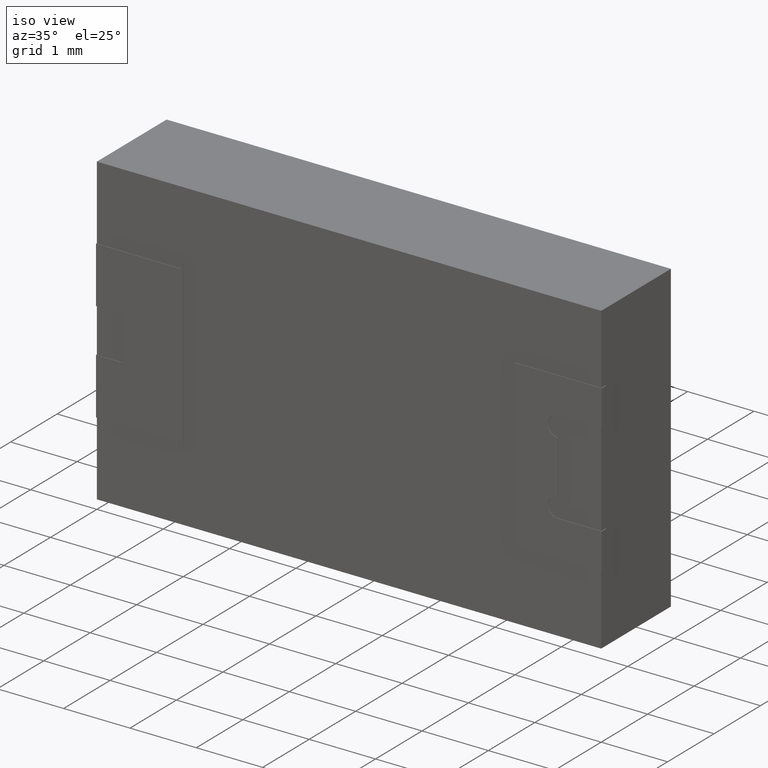
[diagram: clean part render]
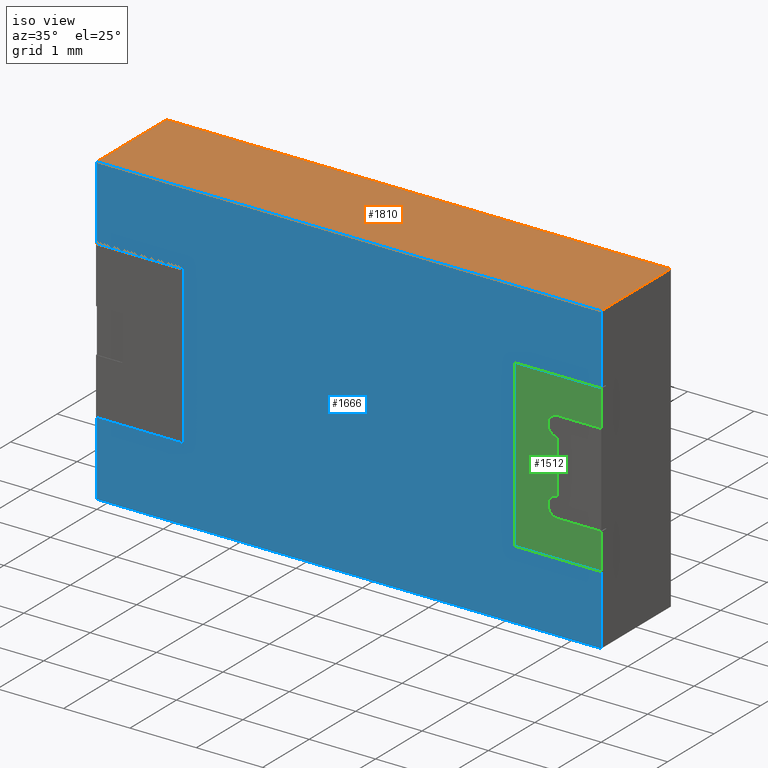
[diagram: same view with three faces highlighted in distinct colors, each labeled with its STEP entity id]
A machine part, iso view with three faces highlighted in distinct colors.
Their STEP definitions:

[orange] entity #1810 — the highlighted planar face has unit normal (0, 0, -1).
#54 = VERTEX_POINT ( 'NONE', #2719 ) ;
#75 = LINE ( 'NONE', #298, #412 ) ;
#108 = EDGE_LOOP ( 'NONE', ( #844, #1357, #180, #644 ) ) ;
#180 = ORIENTED_EDGE ( 'NONE', *, *, #2215, .F. ) ;
#224 = LINE ( 'NONE', #507, #744 ) ;
#227 = DIRECTION ( 'NONE',  ( 1.000000000000000000, 0.000000000000000000, 0.000000000000000000 ) ) ;
#261 = CARTESIAN_POINT ( 'NONE',  ( 0.000000000000000000, 0.000000000000000000, 0.000000000000000000 ) ) ;
#288 = CARTESIAN_POINT ( 'NONE',  ( 0.000000000000000000, 1.500000000000000000, 0.000000000000000000 ) ) ;
#298 = CARTESIAN_POINT ( 'NONE',  ( 0.000000000000000000, 0.000000000000000000, 0.000000000000000000 ) ) ;
#328 = AXIS2_PLACEMENT_3D ( 'NONE', #2564, #1183, #510 ) ;
#412 = VECTOR ( 'NONE', #2303, 1000.000000000000000 ) ;
#507 = CARTESIAN_POINT ( 'NONE',  ( 7.600000000000000533, 1.500000000000000000, 0.000000000000000000 ) ) ;
#510 = DIRECTION ( 'NONE',  ( -1.000000000000000000, 0.000000000000000000, -0.000000000000000000 ) ) ;
#580 = CARTESIAN_POINT ( 'NONE',  ( 7.600000000000000533, 1.500000000000000000, 0.000000000000000000 ) ) ;
#644 = ORIENTED_EDGE ( 'NONE', *, *, #2559, .T. ) ;
#744 = VECTOR ( 'NONE', #1379, 1000.000000000000000 ) ;
#844 = ORIENTED_EDGE ( 'NONE', *, *, #2618, .T. ) ;
#922 = PLANE ( 'NONE',  #328 ) ;
#939 = LINE ( 'NONE', #2331, #1895 ) ;
#961 = LINE ( 'NONE', #288, #2799 ) ;
#1102 = VERTEX_POINT ( 'NONE', #1147 ) ;
#1147 = CARTESIAN_POINT ( 'NONE',  ( 7.600000000000000533, 0.000000000000000000, 0.000000000000000000 ) ) ;
#1171 = VERTEX_POINT ( 'NONE', #261 ) ;
#1183 = DIRECTION ( 'NONE',  ( 0.000000000000000000, 0.000000000000000000, -1.000000000000000000 ) ) ;
#1357 = ORIENTED_EDGE ( 'NONE', *, *, #1988, .F. ) ;
#1379 = DIRECTION ( 'NONE',  ( -0.000000000000000000, -1.000000000000000000, -0.000000000000000000 ) ) ;
#1641 = DIRECTION ( 'NONE',  ( -0.000000000000000000, -1.000000000000000000, -0.000000000000000000 ) ) ;
#1810 = ADVANCED_FACE ( 'NONE', ( #2337 ), #922, .F. ) ;
#1864 = VERTEX_POINT ( 'NONE', #580 ) ;
#1895 = VECTOR ( 'NONE', #1641, 1000.000000000000000 ) ;
#1988 = EDGE_CURVE ( 'NONE', #1864, #1102, #224, .T. ) ;
#2215 = EDGE_CURVE ( 'NONE', #54, #1864, #961, .T. ) ;
#2303 = DIRECTION ( 'NONE',  ( 1.000000000000000000, 0.000000000000000000, 0.000000000000000000 ) ) ;
#2331 = CARTESIAN_POINT ( 'NONE',  ( 0.000000000000000000, 1.500000000000000000, 0.000000000000000000 ) ) ;
#2337 = FACE_OUTER_BOUND ( 'NONE', #108, .T. ) ;
#2559 = EDGE_CURVE ( 'NONE', #54, #1171, #939, .T. ) ;
#2564 = CARTESIAN_POINT ( 'NONE',  ( 0.000000000000000000, 1.500000000000000000, 0.000000000000000000 ) ) ;
#2618 = EDGE_CURVE ( 'NONE', #1171, #1102, #75, .T. ) ;
#2719 = CARTESIAN_POINT ( 'NONE',  ( 0.000000000000000000, 1.500000000000000000, 0.000000000000000000 ) ) ;
#2799 = VECTOR ( 'NONE', #227, 1000.000000000000000 ) ;

[blue] entity #1666 — the highlighted planar face has unit normal (0, -1, 0).
#21 = VECTOR ( 'NONE', #2529, 1000.000000000000227 ) ;
#30 = DIRECTION ( 'NONE',  ( -1.000000000000000000, 0.000000000000000000, -1.707585837839992113E-15 ) ) ;
#52 = CARTESIAN_POINT ( 'NONE',  ( 0.000000000000000000, 0.000000000000000000, -3.482766509652099440 ) ) ;
#75 = LINE ( 'NONE', #298, #412 ) ;
#78 = EDGE_CURVE ( 'NONE', #890, #1303, #409, .T. ) ;
#99 = VERTEX_POINT ( 'NONE', #2706 ) ;
#218 = DIRECTION ( 'NONE',  ( 0.000000000000000000, 0.000000000000000000, -1.000000000000000000 ) ) ;
#243 = LINE ( 'NONE', #464, #21 ) ;
#261 = CARTESIAN_POINT ( 'NONE',  ( 0.000000000000000000, 0.000000000000000000, 0.000000000000000000 ) ) ;
#291 = EDGE_CURVE ( 'NONE', #2261, #1171, #520, .T. ) ;
#295 = DIRECTION ( 'NONE',  ( -0.000000000000000000, -0.000000000000000000, 1.000000000000000000 ) ) ;
#298 = CARTESIAN_POINT ( 'NONE',  ( 0.000000000000000000, 0.000000000000000000, 0.000000000000000000 ) ) ;
#356 = ORIENTED_EDGE ( 'NONE', *, *, #78, .F. ) ;
#364 = VECTOR ( 'NONE', #295, 1000.000000000000000 ) ;
#380 = DIRECTION ( 'NONE',  ( -0.000000000000000000, -0.000000000000000000, 1.000000000000000000 ) ) ;
#409 = LINE ( 'NONE', #1336, #2003 ) ;
#411 = VECTOR ( 'NONE', #2448, 1000.000000000000000 ) ;
#412 = VECTOR ( 'NONE', #2303, 1000.000000000000000 ) ;
#426 = VERTEX_POINT ( 'NONE', #572 ) ;
#436 = DIRECTION ( 'NONE',  ( 0.000000000000000000, 0.000000000000000000, 1.000000000000000000 ) ) ;
#438 = VERTEX_POINT ( 'NONE', #2657 ) ;
#443 = CARTESIAN_POINT ( 'NONE',  ( 5.947122768385349820E-15, -0.000000000000000000, -3.482766509652102105 ) ) ;
#464 = CARTESIAN_POINT ( 'NONE',  ( -0.2424317723939178049, -0.000000000000000000, -0.1086595391031728031 ) ) ;
#489 = EDGE_CURVE ( 'NONE', #438, #1027, #243, .T. ) ;
#503 = VECTOR ( 'NONE', #1875, 1000.000000000000000 ) ;
#520 = LINE ( 'NONE', #1430, #364 ) ;
#572 = CARTESIAN_POINT ( 'NONE',  ( 1.300000000000000044, 0.000000000000000000, -1.050000000000000044 ) ) ;
#578 = CARTESIAN_POINT ( 'NONE',  ( 0.000000000000000000, -0.000000000000000000, -3.550000000000000266 ) ) ;
#594 = LINE ( 'NONE', #2428, #1937 ) ;
#611 = LINE ( 'NONE', #1526, #411 ) ;
#616 = CARTESIAN_POINT ( 'NONE',  ( 7.600000000000000533, 0.000000000000000000, -4.599999999999999645 ) ) ;
#618 = ORIENTED_EDGE ( 'NONE', *, *, #1126, .T. ) ;
#674 = DIRECTION ( 'NONE',  ( 0.000000000000000000, -1.000000000000000000, 0.000000000000000000 ) ) ;
#742 = AXIS2_PLACEMENT_3D ( 'NONE', #2430, #674, #2504 ) ;
#757 = VERTEX_POINT ( 'NONE', #845 ) ;
#793 = CARTESIAN_POINT ( 'NONE',  ( 6.300000000000000711, 0.000000000000000000, -1.050000000000000044 ) ) ;
#803 = EDGE_CURVE ( 'NONE', #1303, #757, #2341, .T. ) ;
#839 = DIRECTION ( 'NONE',  ( 0.000000000000000000, 0.000000000000000000, -1.000000000000000000 ) ) ;
#845 = CARTESIAN_POINT ( 'NONE',  ( 0.000000000000000000, 0.000000000000000000, -4.599999999999999645 ) ) ;
#852 = LINE ( 'NONE', #1592, #2751 ) ;
#890 = VERTEX_POINT ( 'NONE', #1217 ) ;
#988 = VECTOR ( 'NONE', #1492, 1000.000000000000000 ) ;
#990 = VERTEX_POINT ( 'NONE', #793 ) ;
#992 = LINE ( 'NONE', #578, #988 ) ;
#993 = CARTESIAN_POINT ( 'NONE',  ( 1.269865500708257100, -0.000000000000000000, -3.482766509652099884 ) ) ;
#1027 = VERTEX_POINT ( 'NONE', #993 ) ;
#1039 = EDGE_CURVE ( 'NONE', #426, #438, #1904, .T. ) ;
#1063 = ORIENTED_EDGE ( 'NONE', *, *, #803, .F. ) ;
#1089 = ORIENTED_EDGE ( 'NONE', *, *, #2618, .F. ) ;
#1102 = VERTEX_POINT ( 'NONE', #1147 ) ;
#1111 = EDGE_CURVE ( 'NONE', #757, #1591, #594, .T. ) ;
#1126 = EDGE_CURVE ( 'NONE', #2672, #426, #1291, .T. ) ;
#1139 = CARTESIAN_POINT ( 'NONE',  ( 0.000000000000000000, 0.000000000000000000, -4.599999999999999645 ) ) ;
#1142 = ORIENTED_EDGE ( 'NONE', *, *, #2288, .F. ) ;
#1147 = CARTESIAN_POINT ( 'NONE',  ( 7.600000000000000533, 0.000000000000000000, 0.000000000000000000 ) ) ;
#1171 = VERTEX_POINT ( 'NONE', #261 ) ;
#1175 = CARTESIAN_POINT ( 'NONE',  ( 3.815544171357233620E-16, 0.000000000000000000, -1.117233490347900426 ) ) ;
#1196 = CARTESIAN_POINT ( 'NONE',  ( 1.474421598209944229, 0.000000000000000000, -0.6608456050262987436 ) ) ;
#1212 = ORIENTED_EDGE ( 'NONE', *, *, #291, .F. ) ;
#1217 = CARTESIAN_POINT ( 'NONE',  ( 7.600000000000000533, 0.000000000000000000, -3.550000000000000266 ) ) ;
#1291 = LINE ( 'NONE', #1196, #503 ) ;
#1303 = VERTEX_POINT ( 'NONE', #616 ) ;
#1336 = CARTESIAN_POINT ( 'NONE',  ( 7.600000000000000533, 0.000000000000000000, 0.000000000000000000 ) ) ;
#1348 = ORIENTED_EDGE ( 'NONE', *, *, #2304, .T. ) ;
#1394 = ORIENTED_EDGE ( 'NONE', *, *, #2344, .T. ) ;
#1430 = CARTESIAN_POINT ( 'NONE',  ( 0.000000000000000000, 0.000000000000000000, 0.000000000000000000 ) ) ;
#1492 = DIRECTION ( 'NONE',  ( -1.000000000000000000, 0.000000000000000000, 0.000000000000000000 ) ) ;
#1526 = CARTESIAN_POINT ( 'NONE',  ( 0.000000000000000000, 0.000000000000000000, -1.050000000000000044 ) ) ;
#1562 = VECTOR ( 'NONE', #30, 1000.000000000000000 ) ;
#1587 = LINE ( 'NONE', #443, #1562 ) ;
#1591 = VERTEX_POINT ( 'NONE', #52 ) ;
#1592 = CARTESIAN_POINT ( 'NONE',  ( 6.300000000000000711, 0.000000000000000000, 0.000000000000000000 ) ) ;
#1636 = DIRECTION ( 'NONE',  ( 1.000000000000000000, 0.000000000000000000, 3.415171675679981761E-16 ) ) ;
#1666 = ADVANCED_FACE ( 'NONE', ( #1947 ), #1929, .T. ) ;
#1705 = ORIENTED_EDGE ( 'NONE', *, *, #2809, .T. ) ;
#1772 = EDGE_CURVE ( 'NONE', #990, #1913, #611, .T. ) ;
#1774 = ORIENTED_EDGE ( 'NONE', *, *, #489, .T. ) ;
#1781 = ORIENTED_EDGE ( 'NONE', *, *, #1039, .T. ) ;
#1827 = CARTESIAN_POINT ( 'NONE',  ( 7.600000000000000533, 0.000000000000000000, -1.050000000000000044 ) ) ;
#1855 = CARTESIAN_POINT ( 'NONE',  ( 0.000000000000000000, 0.000000000000000000, -1.117233490347900426 ) ) ;
#1875 = DIRECTION ( 'NONE',  ( 0.4090033337085020038, 0.000000000000000000, 0.9125328887307743164 ) ) ;
#1904 = LINE ( 'NONE', #2813, #2079 ) ;
#1907 = EDGE_LOOP ( 'NONE', ( #2249, #1142, #1089, #1212, #1705, #618, #1781, #1774, #1348, #2535, #1063, #356, #1394, #2225 ) ) ;
#1913 = VERTEX_POINT ( 'NONE', #1827 ) ;
#1929 = PLANE ( 'NONE',  #742 ) ;
#1937 = VECTOR ( 'NONE', #380, 1000.000000000000000 ) ;
#1947 = FACE_OUTER_BOUND ( 'NONE', #1907, .T. ) ;
#1957 = CARTESIAN_POINT ( 'NONE',  ( 1.269865500708257100, 0.000000000000000000, -1.117233490347899982 ) ) ;
#2003 = VECTOR ( 'NONE', #218, 1000.000000000000000 ) ;
#2069 = LINE ( 'NONE', #1175, #2620 ) ;
#2079 = VECTOR ( 'NONE', #839, 1000.000000000000000 ) ;
#2110 = LINE ( 'NONE', #2794, #2138 ) ;
#2138 = VECTOR ( 'NONE', #2749, 1000.000000000000000 ) ;
#2225 = ORIENTED_EDGE ( 'NONE', *, *, #2753, .T. ) ;
#2249 = ORIENTED_EDGE ( 'NONE', *, *, #1772, .T. ) ;
#2261 = VERTEX_POINT ( 'NONE', #1855 ) ;
#2277 = VECTOR ( 'NONE', #2727, 1000.000000000000000 ) ;
#2288 = EDGE_CURVE ( 'NONE', #1102, #1913, #2110, .T. ) ;
#2303 = DIRECTION ( 'NONE',  ( 1.000000000000000000, 0.000000000000000000, 0.000000000000000000 ) ) ;
#2304 = EDGE_CURVE ( 'NONE', #1027, #1591, #1587, .T. ) ;
#2341 = LINE ( 'NONE', #1139, #2277 ) ;
#2344 = EDGE_CURVE ( 'NONE', #890, #99, #992, .T. ) ;
#2428 = CARTESIAN_POINT ( 'NONE',  ( 0.000000000000000000, 0.000000000000000000, 0.000000000000000000 ) ) ;
#2430 = CARTESIAN_POINT ( 'NONE',  ( 0.000000000000000000, 0.000000000000000000, 0.000000000000000000 ) ) ;
#2448 = DIRECTION ( 'NONE',  ( 1.000000000000000000, 0.000000000000000000, 0.000000000000000000 ) ) ;
#2504 = DIRECTION ( 'NONE',  ( 0.000000000000000000, -0.000000000000000000, -1.000000000000000000 ) ) ;
#2529 = DIRECTION ( 'NONE',  ( -0.4090033337085007825, 0.000000000000000000, 0.9125328887307747605 ) ) ;
#2535 = ORIENTED_EDGE ( 'NONE', *, *, #1111, .F. ) ;
#2618 = EDGE_CURVE ( 'NONE', #1171, #1102, #75, .T. ) ;
#2620 = VECTOR ( 'NONE', #1636, 1000.000000000000000 ) ;
#2657 = CARTESIAN_POINT ( 'NONE',  ( 1.300000000000000044, 0.000000000000000000, -3.550000000000000266 ) ) ;
#2672 = VERTEX_POINT ( 'NONE', #1957 ) ;
#2706 = CARTESIAN_POINT ( 'NONE',  ( 6.300000000000000711, -0.000000000000000000, -3.550000000000000266 ) ) ;
#2727 = DIRECTION ( 'NONE',  ( -1.000000000000000000, -0.000000000000000000, -0.000000000000000000 ) ) ;
#2749 = DIRECTION ( 'NONE',  ( 0.000000000000000000, 0.000000000000000000, -1.000000000000000000 ) ) ;
#2751 = VECTOR ( 'NONE', #436, 1000.000000000000000 ) ;
#2753 = EDGE_CURVE ( 'NONE', #99, #990, #852, .T. ) ;
#2794 = CARTESIAN_POINT ( 'NONE',  ( 7.600000000000000533, 0.000000000000000000, 0.000000000000000000 ) ) ;
#2809 = EDGE_CURVE ( 'NONE', #2261, #2672, #2069, .T. ) ;
#2813 = CARTESIAN_POINT ( 'NONE',  ( 1.300000000000000044, 0.000000000000000000, 0.000000000000000000 ) ) ;

[green] entity #1512 — the highlighted planar face has unit normal (0, -1, 0).
#18 = VERTEX_POINT ( 'NONE', #2422 ) ;
#172 = DIRECTION ( 'NONE',  ( 0.000000000000000000, -1.000000000000000000, 0.000000000000000000 ) ) ;
#174 = CARTESIAN_POINT ( 'NONE',  ( 6.950000000000001066, -0.005000000000000000104, -2.700000000000000178 ) ) ;
#239 = CARTESIAN_POINT ( 'NONE',  ( 0.000000000000000000, -0.005000000000000000104, -3.550000000000000266 ) ) ;
#252 = EDGE_CURVE ( 'NONE', #292, #18, #2289, .T. ) ;
#283 = CARTESIAN_POINT ( 'NONE',  ( 6.950000000000001066, -0.005000000000000000104, -1.899999999999999689 ) ) ;
#292 = VERTEX_POINT ( 'NONE', #2039 ) ;
#357 = ORIENTED_EDGE ( 'NONE', *, *, #592, .F. ) ;
#368 = DIRECTION ( 'NONE',  ( -0.000000000000000000, 1.000000000000000000, -0.000000000000000000 ) ) ;
#379 = VERTEX_POINT ( 'NONE', #535 ) ;
#396 = FACE_OUTER_BOUND ( 'NONE', #1967, .T. ) ;
#420 = DIRECTION ( 'NONE',  ( 0.000000000000000000, -0.000000000000000000, -1.000000000000000000 ) ) ;
#433 = DIRECTION ( 'NONE',  ( 1.000000000000000000, 0.000000000000000000, 0.000000000000000000 ) ) ;
#440 = ORIENTED_EDGE ( 'NONE', *, *, #1898, .T. ) ;
#446 = DIRECTION ( 'NONE',  ( 0.000000000000000000, -1.000000000000000000, 0.000000000000000000 ) ) ;
#490 = ORIENTED_EDGE ( 'NONE', *, *, #686, .F. ) ;
#516 = CARTESIAN_POINT ( 'NONE',  ( 7.610000000000000320, -0.005000000000000000104, -1.050000000000000044 ) ) ;
#535 = CARTESIAN_POINT ( 'NONE',  ( 7.610000000000000320, -0.005000000000000000104, -3.000000000000000000 ) ) ;
#540 = CARTESIAN_POINT ( 'NONE',  ( 6.950000000000001066, -0.005000000000000000104, -3.000000000000000000 ) ) ;
#592 = EDGE_CURVE ( 'NONE', #2922, #1567, #779, .T. ) ;
#602 = VECTOR ( 'NONE', #2602, 1000.000000000000000 ) ;
#629 = CARTESIAN_POINT ( 'NONE',  ( 0.000000000000000000, -0.005000000000000000104, -1.050000000000000044 ) ) ;
#658 = AXIS2_PLACEMENT_3D ( 'NONE', #813, #368, #2197 ) ;
#684 = DIRECTION ( 'NONE',  ( 0.000000000000000000, 0.000000000000000000, 1.000000000000000000 ) ) ;
#686 = EDGE_CURVE ( 'NONE', #18, #2922, #1079, .T. ) ;
#779 = LINE ( 'NONE', #2177, #836 ) ;
#813 = CARTESIAN_POINT ( 'NONE',  ( 6.950000000000001066, -0.005000000000000000104, -2.850000000000000089 ) ) ;
#836 = VECTOR ( 'NONE', #1908, 1000.000000000000000 ) ;
#837 = ORIENTED_EDGE ( 'NONE', *, *, #1828, .T. ) ;
#841 = VECTOR ( 'NONE', #1867, 1000.000000000000000 ) ;
#846 = VECTOR ( 'NONE', #2411, 1000.000000000000000 ) ;
#858 = EDGE_CURVE ( 'NONE', #1481, #292, #2078, .T. ) ;
#895 = CARTESIAN_POINT ( 'NONE',  ( 0.000000000000000000, -0.005000000000000000104, 0.000000000000000000 ) ) ;
#904 = ORIENTED_EDGE ( 'NONE', *, *, #858, .F. ) ;
#908 = AXIS2_PLACEMENT_3D ( 'NONE', #2256, #446, #2509 ) ;
#995 = CIRCLE ( 'NONE', #908, 0.1499999999999999667 ) ;
#1079 = LINE ( 'NONE', #629, #1170 ) ;
#1170 = VECTOR ( 'NONE', #433, 1000.000000000000000 ) ;
#1186 = AXIS2_PLACEMENT_3D ( 'NONE', #895, #172, #420 ) ;
#1238 = CARTESIAN_POINT ( 'NONE',  ( 0.000000000000000000, -0.005000000000000000104, -3.000000000000000000 ) ) ;
#1338 = CIRCLE ( 'NONE', #658, 0.1499999999999999667 ) ;
#1372 = EDGE_CURVE ( 'NONE', #2373, #2729, #1338, .T. ) ;
#1381 = CARTESIAN_POINT ( 'NONE',  ( 6.950000000000001066, -0.005000000000000000104, -1.599999999999999867 ) ) ;
#1385 = ORIENTED_EDGE ( 'NONE', *, *, #1621, .F. ) ;
#1437 = LINE ( 'NONE', #2736, #1997 ) ;
#1446 = EDGE_CURVE ( 'NONE', #2293, #2593, #995, .T. ) ;
#1481 = VERTEX_POINT ( 'NONE', #2283 ) ;
#1512 = ADVANCED_FACE ( 'NONE', ( #396 ), #2933, .T. ) ;
#1521 = LINE ( 'NONE', #1701, #602 ) ;
#1567 = VERTEX_POINT ( 'NONE', #2781 ) ;
#1621 = EDGE_CURVE ( 'NONE', #1567, #2293, #2112, .T. ) ;
#1639 = CARTESIAN_POINT ( 'NONE',  ( 6.300000000000000711, -0.005000000000000000104, 0.000000000000000000 ) ) ;
#1693 = CARTESIAN_POINT ( 'NONE',  ( 0.000000000000000000, -0.005000000000000000104, -1.599999999999999867 ) ) ;
#1701 = CARTESIAN_POINT ( 'NONE',  ( 6.950000000000001066, -0.005000000000000000104, 0.000000000000000000 ) ) ;
#1784 = ORIENTED_EDGE ( 'NONE', *, *, #2651, .T. ) ;
#1828 = EDGE_CURVE ( 'NONE', #1481, #379, #1437, .T. ) ;
#1867 = DIRECTION ( 'NONE',  ( -1.000000000000000000, 0.000000000000000000, 0.000000000000000000 ) ) ;
#1898 = EDGE_CURVE ( 'NONE', #379, #2373, #2596, .T. ) ;
#1908 = DIRECTION ( 'NONE',  ( 0.000000000000000000, 0.000000000000000000, -1.000000000000000000 ) ) ;
#1967 = EDGE_LOOP ( 'NONE', ( #1784, #2851, #1385, #357, #490, #2082, #904, #837, #440, #2864 ) ) ;
#1997 = VECTOR ( 'NONE', #684, 1000.000000000000000 ) ;
#2039 = CARTESIAN_POINT ( 'NONE',  ( 6.300000000000000711, -0.005000000000000000104, -3.550000000000000266 ) ) ;
#2078 = LINE ( 'NONE', #239, #841 ) ;
#2082 = ORIENTED_EDGE ( 'NONE', *, *, #252, .F. ) ;
#2112 = LINE ( 'NONE', #1693, #846 ) ;
#2177 = CARTESIAN_POINT ( 'NONE',  ( 7.610000000000000320, -0.005000000000000000104, 0.000000000000000000 ) ) ;
#2197 = DIRECTION ( 'NONE',  ( 0.000000000000000000, 0.000000000000000000, -1.000000000000000000 ) ) ;
#2256 = CARTESIAN_POINT ( 'NONE',  ( 6.950000000000001066, -0.005000000000000000104, -1.750000000000000000 ) ) ;
#2283 = CARTESIAN_POINT ( 'NONE',  ( 7.610000000000000320, -0.005000000000000000104, -3.550000000000000266 ) ) ;
#2289 = LINE ( 'NONE', #1639, #2943 ) ;
#2293 = VERTEX_POINT ( 'NONE', #1381 ) ;
#2373 = VERTEX_POINT ( 'NONE', #540 ) ;
#2411 = DIRECTION ( 'NONE',  ( -1.000000000000000000, 0.000000000000000000, 0.000000000000000000 ) ) ;
#2422 = CARTESIAN_POINT ( 'NONE',  ( 6.300000000000000711, -0.005000000000000000104, -1.050000000000000044 ) ) ;
#2429 = VECTOR ( 'NONE', #2735, 1000.000000000000000 ) ;
#2509 = DIRECTION ( 'NONE',  ( 0.000000000000000000, 0.000000000000000000, -1.000000000000000000 ) ) ;
#2531 = DIRECTION ( 'NONE',  ( 0.000000000000000000, 0.000000000000000000, 1.000000000000000000 ) ) ;
#2593 = VERTEX_POINT ( 'NONE', #283 ) ;
#2596 = LINE ( 'NONE', #1238, #2429 ) ;
#2602 = DIRECTION ( 'NONE',  ( 0.000000000000000000, 0.000000000000000000, 1.000000000000000000 ) ) ;
#2651 = EDGE_CURVE ( 'NONE', #2729, #2593, #1521, .T. ) ;
#2729 = VERTEX_POINT ( 'NONE', #174 ) ;
#2735 = DIRECTION ( 'NONE',  ( -1.000000000000000000, 0.000000000000000000, 0.000000000000000000 ) ) ;
#2736 = CARTESIAN_POINT ( 'NONE',  ( 7.610000000000000320, -0.005000000000000000104, 0.000000000000000000 ) ) ;
#2781 = CARTESIAN_POINT ( 'NONE',  ( 7.610000000000000320, -0.005000000000000000104, -1.599999999999999867 ) ) ;
#2851 = ORIENTED_EDGE ( 'NONE', *, *, #1446, .F. ) ;
#2864 = ORIENTED_EDGE ( 'NONE', *, *, #1372, .T. ) ;
#2922 = VERTEX_POINT ( 'NONE', #516 ) ;
#2933 = PLANE ( 'NONE',  #1186 ) ;
#2943 = VECTOR ( 'NONE', #2531, 1000.000000000000000 ) ;